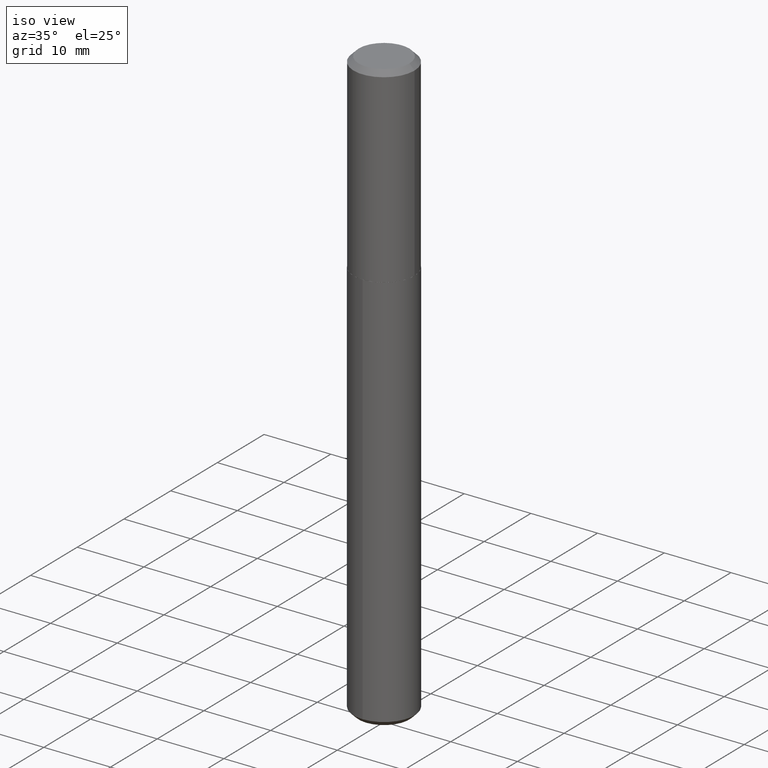
[diagram: clean part render]
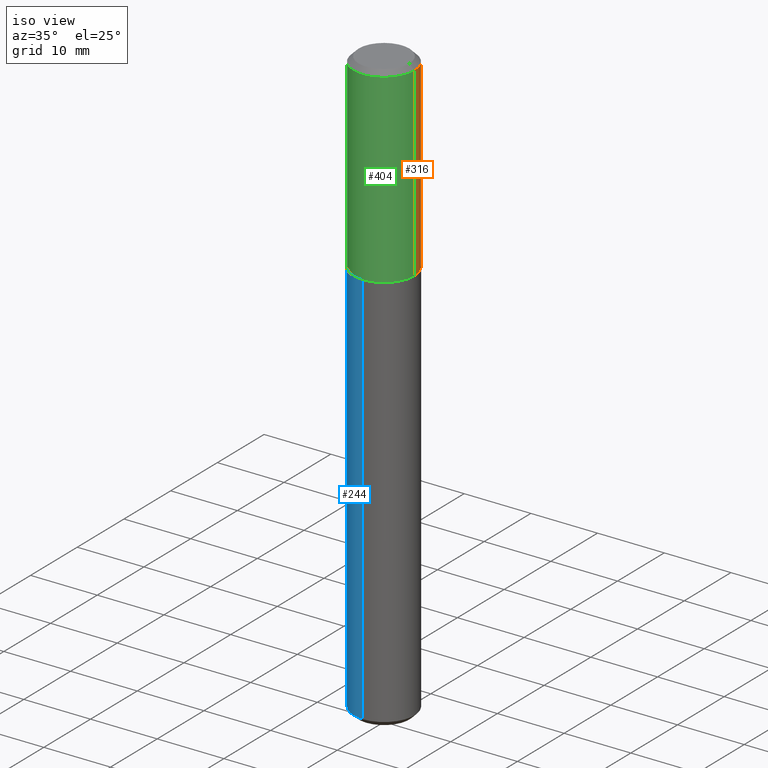
[diagram: same view with three faces highlighted in distinct colors, each labeled with its STEP entity id]
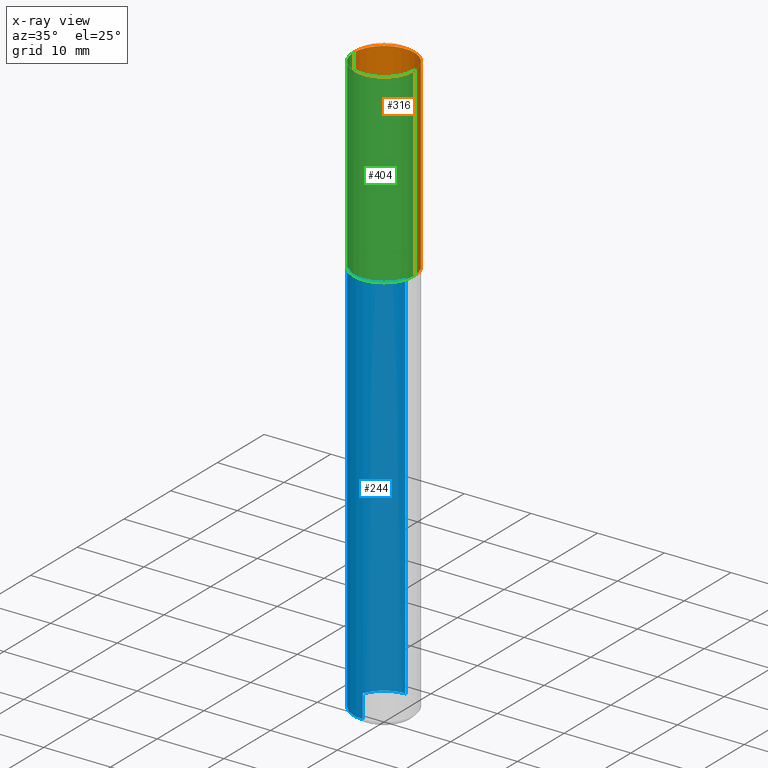
[diagram: x-ray of the same camera — body ghosted, the three highlighted faces saturated]
A machine part, iso view with three faces highlighted in distinct colors.
The next image is the same camera in x-ray (body ghosted, the three faces saturated) — at least one of them is partly hidden behind the body in this view.
Their STEP definitions:

[orange] entity #316 — the highlighted cylindrical surface (partial cylindrical patch) has radius 4.5644 mm, axis along (-0, 0, 1).
#14 = CYLINDRICAL_SURFACE ( 'NONE', #284, 0.1797000000000000541 ) ;
#18 = LINE ( 'NONE', #57, #398 ) ;
#28 = CARTESIAN_POINT ( 'NONE',  ( 2.749929672555185870E-29, -3.926170765529116932E-15, -1.124499999999999833 ) ) ;
#39 = CARTESIAN_POINT ( 'NONE',  ( 0.1797000000000000541, -1.254838393180222519E-15, 8.762489666105299848E-30 ) ) ;
#52 = ORIENTED_EDGE ( 'NONE', *, *, #127, .T. ) ;
#57 = CARTESIAN_POINT ( 'NONE',  ( -0.1797000000000000541, 1.276845296160900419E-15, -8.839326357188068388E-30 ) ) ;
#68 = LINE ( 'NONE', #39, #227 ) ;
#84 = VERTEX_POINT ( 'NONE', #341 ) ;
#86 = DIRECTION ( 'NONE',  ( -2.445468806185136597E-29, 3.491481338843145583E-15, 1.000000000000000000 ) ) ;
#97 = EDGE_CURVE ( 'NONE', #106, #293, #412, .T. ) ;
#100 = CARTESIAN_POINT ( 'NONE',  ( 0.000000000000000000, 0.000000000000000000, 0.000000000000000000 ) ) ;
#106 = VERTEX_POINT ( 'NONE', #383 ) ;
#122 = DIRECTION ( 'NONE',  ( -2.445468806185136877E-29, 3.491481338843145188E-15, 1.000000000000000000 ) ) ;
#127 = EDGE_CURVE ( 'NONE', #293, #84, #18, .T. ) ;
#134 = CARTESIAN_POINT ( 'NONE',  ( 0.1796999999999999986, -1.359582833345517072E-15, -0.03000000000000021053 ) ) ;
#143 = DIRECTION ( 'NONE',  ( -2.445468806185136597E-29, 3.491481338843145583E-15, 1.000000000000000000 ) ) ;
#150 = DIRECTION ( 'NONE',  ( -2.445468806185136877E-29, 3.491481338843145188E-15, 1.000000000000000000 ) ) ;
#216 = EDGE_CURVE ( 'NONE', #106, #263, #68, .T. ) ;
#224 = DIRECTION ( 'NONE',  ( 1.000000000000000000, -6.982962677686266711E-15, 4.876176775795936353E-29 ) ) ;
#227 = VECTOR ( 'NONE', #122, 39.37007874015748143 ) ;
#228 = AXIS2_PLACEMENT_3D ( 'NONE', #28, #143, #302 ) ;
#230 = CARTESIAN_POINT ( 'NONE',  ( -0.1797000000000001374, -2.649325469368215527E-15, -1.124499999999999833 ) ) ;
#263 = VERTEX_POINT ( 'NONE', #134 ) ;
#284 = AXIS2_PLACEMENT_3D ( 'NONE', #100, #401, #224 ) ;
#293 = VERTEX_POINT ( 'NONE', #230 ) ;
#295 = ORIENTED_EDGE ( 'NONE', *, *, #97, .T. ) ;
#298 = FACE_OUTER_BOUND ( 'NONE', #363, .T. ) ;
#302 = DIRECTION ( 'NONE',  ( 1.000000000000000000, -6.982962677686264344E-15, 0.000000000000000000 ) ) ;
#306 = DIRECTION ( 'NONE',  ( 1.000000000000000000, -6.982962677686265922E-15, 0.000000000000000000 ) ) ;
#316 = ADVANCED_FACE ( 'NONE', ( #298 ), #14, .T. ) ;
#326 = AXIS2_PLACEMENT_3D ( 'NONE', #405, #86, #306 ) ;
#341 = CARTESIAN_POINT ( 'NONE',  ( -0.1796999999999999986, -7.386123066863051264E-16, -0.03000000000000021053 ) ) ;
#352 = ORIENTED_EDGE ( 'NONE', *, *, #216, .F. ) ;
#359 = ORIENTED_EDGE ( 'NONE', *, *, #413, .F. ) ;
#363 = EDGE_LOOP ( 'NONE', ( #295, #52, #359, #352 ) ) ;
#383 = CARTESIAN_POINT ( 'NONE',  ( 0.1797000000000001374, -5.181009158709339451E-15, -1.124499999999999833 ) ) ;
#384 = CIRCLE ( 'NONE', #326, 0.1796999999999999986 ) ;
#398 = VECTOR ( 'NONE', #150, 39.37007874015748143 ) ;
#401 = DIRECTION ( 'NONE',  ( -2.445468806185136597E-29, 3.491481338843145583E-15, 1.000000000000000000 ) ) ;
#405 = CARTESIAN_POINT ( 'NONE',  ( 7.336406418555460973E-31, -1.047444401652950952E-16, -0.03000000000000021053 ) ) ;
#412 = CIRCLE ( 'NONE', #228, 0.1797000000000001374 ) ;
#413 = EDGE_CURVE ( 'NONE', #263, #84, #384, .T. ) ;

[blue] entity #244 — the highlighted cylindrical surface (partial cylindrical patch) has radius 4.5644 mm, axis along (-0, 0, 1).
#11 = AXIS2_PLACEMENT_3D ( 'NONE', #389, #350, #94 ) ;
#21 = VERTEX_POINT ( 'NONE', #381 ) ;
#24 = AXIS2_PLACEMENT_3D ( 'NONE', #42, #261, #79 ) ;
#35 = VECTOR ( 'NONE', #149, 39.37007874015748143 ) ;
#36 = CARTESIAN_POINT ( 'NONE',  ( -1.254838393180137519E-15, -0.1797000000000121833, -3.469999999999999307 ) ) ;
#42 = CARTESIAN_POINT ( 'NONE',  ( 2.751152406958278111E-29, -3.927916506198538435E-15, -1.124999999999999778 ) ) ;
#61 = EDGE_CURVE ( 'NONE', #272, #246, #200, .T. ) ;
#74 = EDGE_LOOP ( 'NONE', ( #133, #111, #155, #161 ) ) ;
#79 = DIRECTION ( 'NONE',  ( -6.982962677686265922E-15, -1.000000000000000000, 3.800567603873488271E-15 ) ) ;
#81 = AXIS2_PLACEMENT_3D ( 'NONE', #333, #370, #210 ) ;
#94 = DIRECTION ( 'NONE',  ( -6.982962677686265922E-15, -1.000000000000000000, 3.800567603873488271E-15 ) ) ;
#111 = ORIENTED_EDGE ( 'NONE', *, *, #61, .T. ) ;
#126 = VECTOR ( 'NONE', #164, 39.37007874015748143 ) ;
#133 = ORIENTED_EDGE ( 'NONE', *, *, #144, .F. ) ;
#137 = VERTEX_POINT ( 'NONE', #148 ) ;
#144 = EDGE_CURVE ( 'NONE', #272, #137, #409, .T. ) ;
#148 = CARTESIAN_POINT ( 'NONE',  ( 1.276845296160985024E-15, 0.1796999999999960851, -1.125000000000000666 ) ) ;
#149 = DIRECTION ( 'NONE',  ( -2.445601401447864121E-29, 3.491291454880066432E-15, 1.000000000000000000 ) ) ;
#155 = ORIENTED_EDGE ( 'NONE', *, *, #414, .T. ) ;
#161 = ORIENTED_EDGE ( 'NONE', *, *, #294, .F. ) ;
#164 = DIRECTION ( 'NONE',  ( -2.445601401447864121E-29, 3.491291454880066432E-15, 1.000000000000000000 ) ) ;
#197 = CARTESIAN_POINT ( 'NONE',  ( -1.254838393180194515E-15, -0.1797000000000039122, -1.124999999999999112 ) ) ;
#200 = CIRCLE ( 'NONE', #81, 0.1796999999999999986 ) ;
#210 = DIRECTION ( 'NONE',  ( -6.982962677686265922E-15, -1.000000000000000000, 3.040454083098790380E-15 ) ) ;
#233 = CARTESIAN_POINT ( 'NONE',  ( 1.276845296160984235E-15, 0.1796999999999878139, -3.470000000000000195 ) ) ;
#244 = ADVANCED_FACE ( 'NONE', ( #416 ), #321, .T. ) ;
#246 = VERTEX_POINT ( 'NONE', #36 ) ;
#261 = DIRECTION ( 'NONE',  ( -2.445601401447863841E-29, 3.491291454880066432E-15, 1.000000000000000000 ) ) ;
#272 = VERTEX_POINT ( 'NONE', #233 ) ;
#274 = LINE ( 'NONE', #197, #126 ) ;
#294 = EDGE_CURVE ( 'NONE', #137, #21, #386, .T. ) ;
#313 = CARTESIAN_POINT ( 'NONE',  ( 1.276845296160927240E-15, 0.1796999999999960851, -1.125000000000000666 ) ) ;
#321 = CYLINDRICAL_SURFACE ( 'NONE', #11, 0.1796999999999999986 ) ;
#333 = CARTESIAN_POINT ( 'NONE',  ( 8.486087693353520127E-29, -1.211499496789229457E-14, -3.469999999999999751 ) ) ;
#350 = DIRECTION ( 'NONE',  ( -2.445601401447863841E-29, 3.491291454880066432E-15, 1.000000000000000000 ) ) ;
#370 = DIRECTION ( 'NONE',  ( -2.445601401447863841E-29, 3.491291454880066432E-15, 1.000000000000000000 ) ) ;
#381 = CARTESIAN_POINT ( 'NONE',  ( -1.254838393180194515E-15, -0.1797000000000039122, -1.124999999999999112 ) ) ;
#386 = CIRCLE ( 'NONE', #24, 0.1796999999999999986 ) ;
#389 = CARTESIAN_POINT ( 'NONE',  ( 2.751152406958278111E-29, -3.927916506198538435E-15, -1.124999999999999778 ) ) ;
#409 = LINE ( 'NONE', #313, #35 ) ;
#414 = EDGE_CURVE ( 'NONE', #246, #21, #274, .T. ) ;
#416 = FACE_OUTER_BOUND ( 'NONE', #74, .T. ) ;

[green] entity #404 — the highlighted cylindrical surface (partial cylindrical patch) has radius 4.5644 mm, axis along (-0, 0, 1).
#6 = DIRECTION ( 'NONE',  ( 1.000000000000000000, -6.982962677686264344E-15, 0.000000000000000000 ) ) ;
#18 = LINE ( 'NONE', #57, #398 ) ;
#39 = CARTESIAN_POINT ( 'NONE',  ( 0.1797000000000000541, -1.254838393180222519E-15, 8.762489666105299848E-30 ) ) ;
#57 = CARTESIAN_POINT ( 'NONE',  ( -0.1797000000000000541, 1.276845296160900419E-15, -8.839326357188068388E-30 ) ) ;
#68 = LINE ( 'NONE', #39, #227 ) ;
#71 = DIRECTION ( 'NONE',  ( -2.445468806185136597E-29, 3.491481338843145583E-15, 1.000000000000000000 ) ) ;
#76 = DIRECTION ( 'NONE',  ( 1.000000000000000000, -6.982962677686266711E-15, 4.876176775795936353E-29 ) ) ;
#84 = VERTEX_POINT ( 'NONE', #341 ) ;
#99 = EDGE_LOOP ( 'NONE', ( #335, #258, #223, #237 ) ) ;
#106 = VERTEX_POINT ( 'NONE', #383 ) ;
#109 = CARTESIAN_POINT ( 'NONE',  ( 7.336406418555460973E-31, -1.047444401652950952E-16, -0.03000000000000021053 ) ) ;
#113 = DIRECTION ( 'NONE',  ( 1.000000000000000000, -6.982962677686265922E-15, 0.000000000000000000 ) ) ;
#114 = CIRCLE ( 'NONE', #407, 0.1797000000000001374 ) ;
#122 = DIRECTION ( 'NONE',  ( -2.445468806185136877E-29, 3.491481338843145188E-15, 1.000000000000000000 ) ) ;
#127 = EDGE_CURVE ( 'NONE', #293, #84, #18, .T. ) ;
#134 = CARTESIAN_POINT ( 'NONE',  ( 0.1796999999999999986, -1.359582833345517072E-15, -0.03000000000000021053 ) ) ;
#150 = DIRECTION ( 'NONE',  ( -2.445468806185136877E-29, 3.491481338843145188E-15, 1.000000000000000000 ) ) ;
#216 = EDGE_CURVE ( 'NONE', #106, #263, #68, .T. ) ;
#223 = ORIENTED_EDGE ( 'NONE', *, *, #216, .T. ) ;
#227 = VECTOR ( 'NONE', #122, 39.37007874015748143 ) ;
#230 = CARTESIAN_POINT ( 'NONE',  ( -0.1797000000000001374, -2.649325469368215527E-15, -1.124499999999999833 ) ) ;
#236 = DIRECTION ( 'NONE',  ( -2.445468806185136597E-29, 3.491481338843145583E-15, 1.000000000000000000 ) ) ;
#237 = ORIENTED_EDGE ( 'NONE', *, *, #380, .F. ) ;
#242 = CARTESIAN_POINT ( 'NONE',  ( 0.000000000000000000, 0.000000000000000000, 0.000000000000000000 ) ) ;
#254 = CIRCLE ( 'NONE', #317, 0.1796999999999999986 ) ;
#258 = ORIENTED_EDGE ( 'NONE', *, *, #324, .T. ) ;
#263 = VERTEX_POINT ( 'NONE', #134 ) ;
#293 = VERTEX_POINT ( 'NONE', #230 ) ;
#309 = AXIS2_PLACEMENT_3D ( 'NONE', #242, #366, #76 ) ;
#311 = FACE_OUTER_BOUND ( 'NONE', #99, .T. ) ;
#317 = AXIS2_PLACEMENT_3D ( 'NONE', #109, #236, #113 ) ;
#324 = EDGE_CURVE ( 'NONE', #293, #106, #114, .T. ) ;
#335 = ORIENTED_EDGE ( 'NONE', *, *, #127, .F. ) ;
#341 = CARTESIAN_POINT ( 'NONE',  ( -0.1796999999999999986, -7.386123066863051264E-16, -0.03000000000000021053 ) ) ;
#360 = CARTESIAN_POINT ( 'NONE',  ( 2.749929672555185870E-29, -3.926170765529116932E-15, -1.124499999999999833 ) ) ;
#366 = DIRECTION ( 'NONE',  ( -2.445468806185136597E-29, 3.491481338843145583E-15, 1.000000000000000000 ) ) ;
#378 = CYLINDRICAL_SURFACE ( 'NONE', #309, 0.1797000000000000541 ) ;
#380 = EDGE_CURVE ( 'NONE', #84, #263, #254, .T. ) ;
#383 = CARTESIAN_POINT ( 'NONE',  ( 0.1797000000000001374, -5.181009158709339451E-15, -1.124499999999999833 ) ) ;
#398 = VECTOR ( 'NONE', #150, 39.37007874015748143 ) ;
#404 = ADVANCED_FACE ( 'NONE', ( #311 ), #378, .T. ) ;
#407 = AXIS2_PLACEMENT_3D ( 'NONE', #360, #71, #6 ) ;